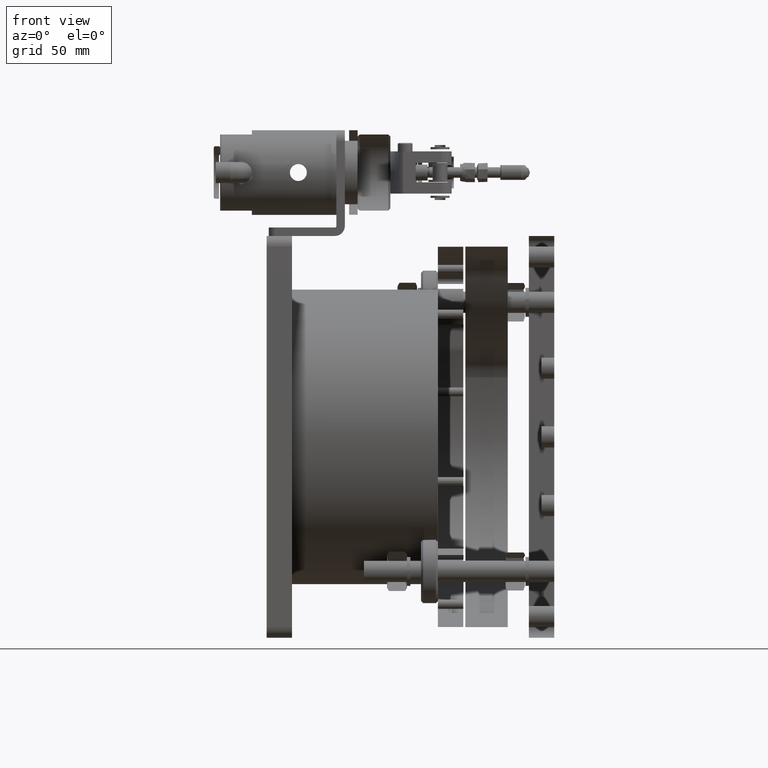
[diagram: clean part render]
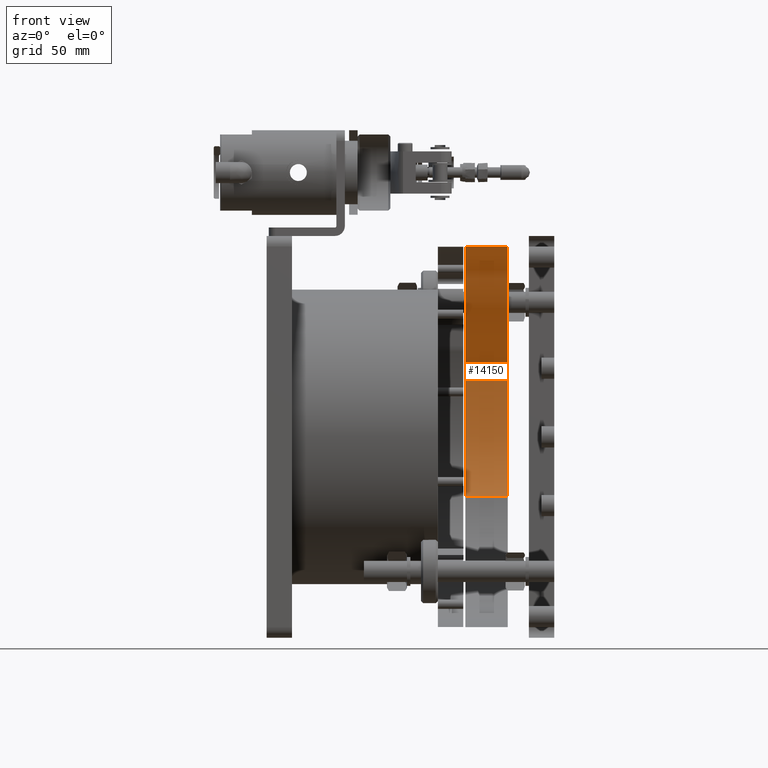
[diagram: same view with one face highlighted and labeled with its STEP entity id]
A machine part, front view. The second image highlights one B-rep face of the part: STEP entity #14150.
In plain terms, the highlighted cylindrical surface (partial cylindrical patch) has radius 90 mm, axis along (1, -0, -0).
Its self-contained STEP definition (entity closure, byte-faithful):
#19 = VERTEX_POINT ( 'NONE', #14267 ) ;
#223 = CYLINDRICAL_SURFACE ( 'NONE', #17676, 89.99999999999997158 ) ;
#557 = VERTEX_POINT ( 'NONE', #16801 ) ;
#1143 = DIRECTION ( 'NONE',  ( 1.000000000000000000, -1.238090656415592001E-21, -3.473191859917468115E-17 ) ) ;
#1251 = CARTESIAN_POINT ( 'NONE',  ( 517.7315486138146525, -85.47756461492137703, 581.8647709278803859 ) ) ;
#1514 = EDGE_LOOP ( 'NONE', ( #20827, #14411, #2516, #11750 ) ) ;
#1654 = VERTEX_POINT ( 'NONE', #17066 ) ;
#1979 = DIRECTION ( 'NONE',  ( 0.000000000000000000, 0.000000000000000000, -1.000000000000000000 ) ) ;
#2134 = CIRCLE ( 'NONE', #16662, 89.99999999999997158 ) ;
#2516 = ORIENTED_EDGE ( 'NONE', *, *, #20297, .F. ) ;
#3466 = DIRECTION ( 'NONE',  ( -1.000000000000000000, 1.238090656415592001E-21, 3.473191859917468115E-17 ) ) ;
#3752 = DIRECTION ( 'NONE',  ( 1.000000000000000000, -1.238090656415592001E-21, -3.473191859917468115E-17 ) ) ;
#5084 = FACE_OUTER_BOUND ( 'NONE', #1514, .T. ) ;
#5281 = DIRECTION ( 'NONE',  ( 1.000000000000000000, -1.238090656415592001E-21, -3.473191859917468115E-17 ) ) ;
#8749 = DIRECTION ( 'NONE',  ( 0.000000000000000000, 0.000000000000000000, -1.000000000000000000 ) ) ;
#9411 = VERTEX_POINT ( 'NONE', #13638 ) ;
#9856 = CARTESIAN_POINT ( 'NONE',  ( 517.7315486138146525, 28.17065756246950059, 695.5129931052715619 ) ) ;
#10610 = CIRCLE ( 'NONE', #14154, 89.99999999999997158 ) ;
#11687 = DIRECTION ( 'NONE',  ( 0.000000000000000000, 0.000000000000000000, -1.000000000000000000 ) ) ;
#11750 = ORIENTED_EDGE ( 'NONE', *, *, #19781, .F. ) ;
#13311 = VECTOR ( 'NONE', #1143, 1000.000000000000000 ) ;
#13630 = CARTESIAN_POINT ( 'NONE',  ( 517.7315486138146525, 2.476181312831184528E-20, 610.0354284903502275 ) ) ;
#13638 = CARTESIAN_POINT ( 'NONE',  ( 537.7315486138146525, 28.17065756246951125, 695.5129931052715619 ) ) ;
#14150 = ADVANCED_FACE ( 'NONE', ( #5084 ), #223, .F. ) ;
#14154 = AXIS2_PLACEMENT_3D ( 'NONE', #17015, #3466, #11687 ) ;
#14267 = CARTESIAN_POINT ( 'NONE',  ( 537.7315486138146525, -85.47756461492139124, 581.8647709278803859 ) ) ;
#14411 = ORIENTED_EDGE ( 'NONE', *, *, #18327, .F. ) ;
#15292 = DIRECTION ( 'NONE',  ( 1.000000000000000000, -1.238090656415592001E-21, -3.473191859917468115E-17 ) ) ;
#16516 = VECTOR ( 'NONE', #5281, 1000.000000000000000 ) ;
#16662 = AXIS2_PLACEMENT_3D ( 'NONE', #13630, #15292, #1979 ) ;
#16801 = CARTESIAN_POINT ( 'NONE',  ( 517.7315486138146525, -85.47756461492139124, 581.8647709278803859 ) ) ;
#17015 = CARTESIAN_POINT ( 'NONE',  ( 537.7315486138146525, -2.057115113939003139E-35, 610.0354284903502275 ) ) ;
#17066 = CARTESIAN_POINT ( 'NONE',  ( 517.7315486138146525, 28.17065756246951125, 695.5129931052715619 ) ) ;
#17676 = AXIS2_PLACEMENT_3D ( 'NONE', #20493, #3752, #8749 ) ;
#18001 = LINE ( 'NONE', #1251, #13311 ) ;
#18327 = EDGE_CURVE ( 'NONE', #19, #9411, #10610, .T. ) ;
#19781 = EDGE_CURVE ( 'NONE', #1654, #557, #2134, .T. ) ;
#20297 = EDGE_CURVE ( 'NONE', #557, #19, #18001, .T. ) ;
#20493 = CARTESIAN_POINT ( 'NONE',  ( 517.7315486138146525, 2.476181312831184227E-20, 610.0354284903502275 ) ) ;
#20827 = ORIENTED_EDGE ( 'NONE', *, *, #21374, .T. ) ;
#21374 = EDGE_CURVE ( 'NONE', #1654, #9411, #21803, .T. ) ;
#21803 = LINE ( 'NONE', #9856, #16516 ) ;